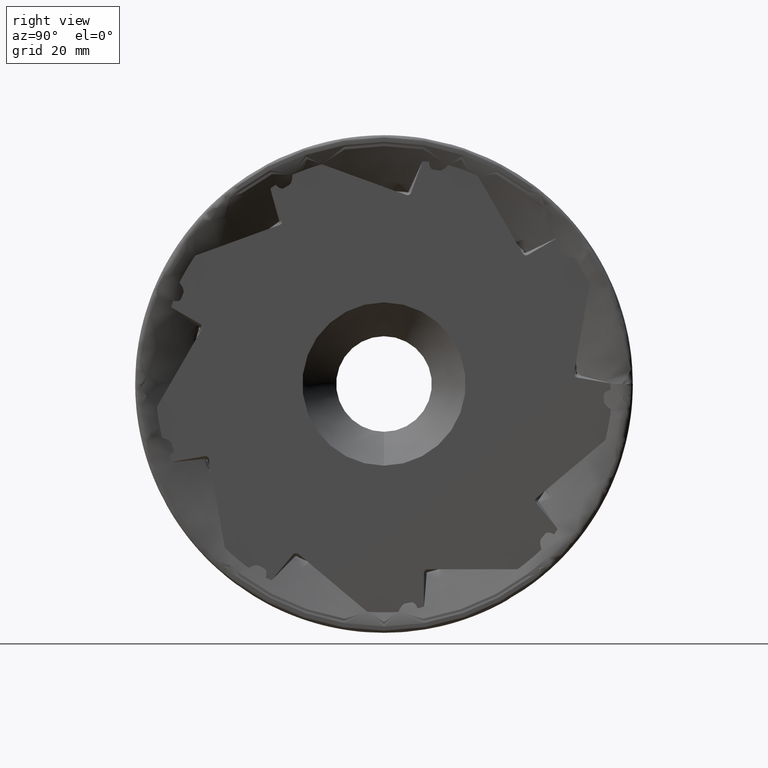
[diagram: clean part render]
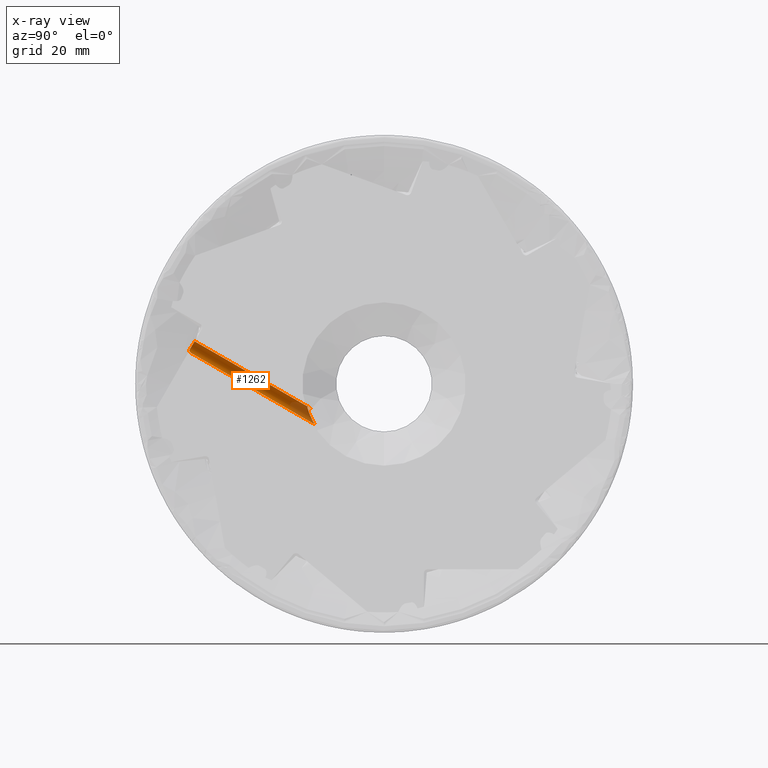
[diagram: x-ray — body ghosted, one internal face saturated and labeled with its STEP entity id]
A machine part, right view, then the same camera in x-ray: the body is ghosted and one INTERNAL B-rep face — a face not visible from any outside direction — is saturated and labeled: STEP entity #1262.
In plain terms, the highlighted cylindrical surface (edge-blend (fillet) strip) has radius 1.5 mm, axis along (-0.3907, 0.7972, -0.4603).
Its self-contained STEP definition (entity closure, byte-faithful):
#147 = CARTESIAN_POINT ( 'NONE',  ( -23.04949674558177700, -18.17345981357127400, -8.704179203961722100 ) ) ;
#307 = CARTESIAN_POINT ( 'NONE',  ( -22.13512762637165600, -19.07228938812385300, -6.504722583545889900 ) ) ;
#1146 = CARTESIAN_POINT ( 'NONE',  ( -7.304587876028966400, -48.70047764900023400, 7.991439512163555700 ) ) ;
#1262 = ADVANCED_FACE ( 'NONE', ( #15607 ), #20296, .F. ) ;
#1347 = CARTESIAN_POINT ( 'NONE',  ( -7.460917184708193900, -47.62067379049517500, 10.53366214104785200 ) ) ;
#1782 = VERTEX_POINT ( 'NONE', #4677 ) ;
#1867 = B_SPLINE_CURVE_WITH_KNOTS ( 'NONE', 3,
 ( #14665, #22360, #10834, #14755, #6717, #1146, #20880, #8809, #24968, #20710 ),
 .UNSPECIFIED., .F., .F.,
 ( 4, 2, 2, 2, 4 ),
 ( 0.003673813656455951800, 0.003960857431740297900, 0.004247901207024643200, 0.004534944982308988400, 0.004821988757593334600 ),
 .UNSPECIFIED. ) ;
#1977 = CARTESIAN_POINT ( 'NONE',  ( -22.83003004655499900, -18.61603675951868200, -7.715044027561571500 ) ) ;
#2137 = CARTESIAN_POINT ( 'NONE',  ( -23.05618106130897600, -18.12019735963106400, -8.814541228761900300 ) ) ;
#2494 = ORIENTED_EDGE ( 'NONE', *, *, #3190, .T. ) ;
#2983 = VERTEX_POINT ( 'NONE', #4596 ) ;
#3112 = CARTESIAN_POINT ( 'NONE',  ( -21.19999999999999900, -18.33770480737776900, -6.155878999639831800 ) ) ;
#3190 = EDGE_CURVE ( 'NONE', #23770, #1782, #16793, .T. ) ;
#3288 = CARTESIAN_POINT ( 'NONE',  ( 1.075119960716870200, -64.80372054943207200, 17.20718608206630800 ) ) ;
#3427 = CARTESIAN_POINT ( 'NONE',  ( -7.587140484888508700, -47.66123783518479200, 10.47225703541106500 ) ) ;
#3999 = CARTESIAN_POINT ( 'NONE',  ( -22.98971414969982900, -17.78594544164039000, -9.470825357509376400 ) ) ;
#4163 = CARTESIAN_POINT ( 'NONE',  ( -22.41679879256662000, -18.93748765123044800, -6.887321674840513300 ) ) ;
#4328 = CARTESIAN_POINT ( 'NONE',  ( -22.86033736683208100, -17.61876432293416500, -9.778140641424514000 ) ) ;
#4535 = CARTESIAN_POINT ( 'NONE',  ( -6.661044478524780200, -47.52018127597649800, 10.69263164512520200 ) ) ;
#4596 = CARTESIAN_POINT ( 'NONE',  ( -6.661044478524780200, -47.52018127597649800, 10.69263164512520200 ) ) ;
#4677 = CARTESIAN_POINT ( 'NONE',  ( -22.15920642049092100, -17.40039738971559700, -10.16113530467824000 ) ) ;
#4729 = ORIENTED_EDGE ( 'NONE', *, *, #13274, .F. ) ;
#4858 = CARTESIAN_POINT ( 'NONE',  ( -21.19999999999999900, -17.85739718309815100, -6.433184735811496900 ) ) ;
#5019 = DIRECTION ( 'NONE',  ( -0.3907311284892715000, 0.7971805873966901800, -0.4602524267262132500 ) ) ;
#5125 = CARTESIAN_POINT ( 'NONE',  ( -6.913100365509359700, -48.50592979871855400, 7.797652204945880100 ) ) ;
#5152 = CARTESIAN_POINT ( 'NONE',  ( -6.830772082628703500, -47.52323555830496100, 10.68734147295166500 ) ) ;
#5270 = LINE ( 'NONE', #10008, #16228 ) ;
#5435 = CARTESIAN_POINT ( 'NONE',  ( -7.752097528712401900, -48.85409976082363000, 8.460303475953495000 ) ) ;
#5823 =( BOUNDED_CURVE ( )  B_SPLINE_CURVE ( 3, ( #9074, #5152, #7142, #4535 ),
 .UNSPECIFIED., .F., .F. ) 
 B_SPLINE_CURVE_WITH_KNOTS ( ( 4, 4 ),
 ( 1.414481761212221800, 1.570796326794897700 ),
 .UNSPECIFIED. ) 
 CURVE ( )  GEOMETRIC_REPRESENTATION_ITEM ( )  RATIONAL_B_SPLINE_CURVE ( ( 1.000000000000000000, 0.9979648493521857700, 0.9979648493521857700, 1.000000000000000000 ) ) 
 REPRESENTATION_ITEM ( '' )  );
#6266 = CARTESIAN_POINT ( 'NONE',  ( 1.075119960716870000, -64.05372054943208600, 18.50622418774296900 ) ) ;
#6318 = CARTESIAN_POINT ( 'NONE',  ( -22.96401420908996700, -18.42932417086362300, -8.150996232620070000 ) ) ;
#6717 = CARTESIAN_POINT ( 'NONE',  ( -7.447582988323485900, -48.75856636618126300, 8.103940568002137500 ) ) ;
#6963 = B_SPLINE_CURVE_WITH_KNOTS ( 'NONE', 3,
 ( #5435, #7255, #21248, #25424, #15395, #13219, #21169, #13383, #9194, #15483, #15300, #3427, #1347, #17419, #21421, #25257 ),
 .UNSPECIFIED., .F., .F.,
 ( 4, 2, 2, 2, 2, 2, 2, 4 ),
 ( 0.001421106266146068400, 0.001848479125001176600, 0.002275851983856284800, 0.002703224842711393000, 0.003130597701566501200, 0.003985343419276732000, 0.004412716278131843600, 0.004840089136986955300 ),
 .UNSPECIFIED. ) ;
#7142 = CARTESIAN_POINT ( 'NONE',  ( -6.746038011559604400, -47.52018127597649800, 10.69263164512520200 ) ) ;
#7255 = CARTESIAN_POINT ( 'NONE',  ( -7.859268461241352800, -48.81226448298376400, 8.544079135479613300 ) ) ;
#7762 = EDGE_CURVE ( 'NONE', #1782, #19839, #21150, .T. ) ;
#7983 = CARTESIAN_POINT ( 'NONE',  ( -22.91224078547865500, -17.67395137540836500, -9.678214245673212100 ) ) ;
#8211 = CARTESIAN_POINT ( 'NONE',  ( -6.914729351933197600, -47.52932547518786800, 10.67679342749657000 ) ) ;
#8628 = ORIENTED_EDGE ( 'NONE', *, *, #23203, .F. ) ;
#8809 = CARTESIAN_POINT ( 'NONE',  ( -7.074345652652673300, -48.59153518681752400, 7.857450146185508200 ) ) ;
#9074 = CARTESIAN_POINT ( 'NONE',  ( -6.914729351933197600, -47.52932547518786800, 10.67679342749657000 ) ) ;
#9194 = CARTESIAN_POINT ( 'NONE',  ( -8.236244034944709500, -48.15690502075395300, 9.701247910136265400 ) ) ;
#9747 = ORIENTED_EDGE ( 'NONE', *, *, #16043, .T. ) ;
#9984 = CARTESIAN_POINT ( 'NONE',  ( -22.71843993646588400, -17.51893396138551800, -9.955894913426346800 ) ) ;
#10008 = CARTESIAN_POINT ( 'NONE',  ( 1.075119960716870000, -63.30372054943210700, 19.80526229341963100 ) ) ;
#10167 = CARTESIAN_POINT ( 'NONE',  ( -21.19999999999999900, -19.31181656956638500, -5.751194726613001700 ) ) ;
#10269 = CARTESIAN_POINT ( 'NONE',  ( -21.19999999999999900, -19.31181656956638500, -5.751194726613001700 ) ) ;
#10567 = CARTESIAN_POINT ( 'NONE',  ( -7.752097528712401900, -48.85409976082363000, 8.460303475953495000 ) ) ;
#10834 = CARTESIAN_POINT ( 'NONE',  ( -7.642240740443803300, -48.82596008144368200, 8.306824317076895200 ) ) ;
#10953 = CARTESIAN_POINT ( 'NONE',  ( -21.19999999999999900, -18.83007073689022800, -5.925004296014898300 ) ) ;
#11615 = ORIENTED_EDGE ( 'NONE', *, *, #13501, .T. ) ;
#12011 = CARTESIAN_POINT ( 'NONE',  ( -21.61954988470937500, -19.23559240991283700, -6.003599937230455400 ) ) ;
#12037 = EDGE_CURVE ( 'NONE', #2983, #24992, #5270, .T. ) ;
#12265 = CARTESIAN_POINT ( 'NONE',  ( -22.74484721533391600, -18.70243792174887100, -7.502694262160841500 ) ) ;
#13219 = CARTESIAN_POINT ( 'NONE',  ( -8.248460476116966000, -48.44979057977672500, 9.210558205346774900 ) ) ;
#13274 = EDGE_CURVE ( 'NONE', #20599, #20357, #6963, .T. ) ;
#13383 = CARTESIAN_POINT ( 'NONE',  ( -8.260958262293948800, -48.23093305071664400, 9.580460006779040000 ) ) ;
#13501 = EDGE_CURVE ( 'NONE', #20599, #23770, #1867, .T. ) ;
#13512 = AXIS2_PLACEMENT_3D ( 'NONE', #6266, #18515, #22346 ) ;
#14279 = CARTESIAN_POINT ( 'NONE',  ( -21.97745487303234000, -19.13187899616039500, -6.326328606932007000 ) ) ;
#14665 = CARTESIAN_POINT ( 'NONE',  ( -7.752097528712401900, -48.85409976082363000, 8.460303475953495000 ) ) ;
#14755 = CARTESIAN_POINT ( 'NONE',  ( -7.516140834681200600, -48.78416877912584200, 8.168107762125902800 ) ) ;
#15300 = CARTESIAN_POINT ( 'NONE',  ( -7.924115985668913200, -47.80704677707088700, 10.25086540874823800 ) ) ;
#15395 = CARTESIAN_POINT ( 'NONE',  ( -8.169172739988244600, -48.58612916703647500, 8.969204869893369300 ) ) ;
#15483 = CARTESIAN_POINT ( 'NONE',  ( -8.099749911377895000, -47.94029493110048200, 10.04760831451846000 ) ) ;
#15607 = FACE_OUTER_BOUND ( 'NONE', #16221, .T. ) ;
#15790 = CARTESIAN_POINT ( 'NONE',  ( -22.62580499517385800, -17.47412372386755300, -10.03399345466758400 ) ) ;
#16043 = EDGE_CURVE ( 'NONE', #19839, #24992, #22507, .T. ) ;
#16072 = DIRECTION ( 'NONE',  ( -0.3907311284892715000, 0.7971805873966901800, -0.4602524267262132500 ) ) ;
#16221 = EDGE_LOOP ( 'NONE', ( #11615, #2494, #19288, #9747, #24413, #8628, #4729 ) ) ;
#16228 = VECTOR ( 'NONE', #16072, 1000.000000000000100 ) ;
#16793 = LINE ( 'NONE', #3288, #23026 ) ;
#17419 = CARTESIAN_POINT ( 'NONE',  ( -7.197527818607051500, -47.56031214144264400, 10.62632382729002100 ) ) ;
#18214 = CARTESIAN_POINT ( 'NONE',  ( -23.04814924141389900, -17.95474086050468500, -9.146844081162550200 ) ) ;
#18515 = DIRECTION ( 'NONE',  ( -0.3907311284892715500, 0.7971805873966902900, -0.4602524267262133000 ) ) ;
#19021 = CARTESIAN_POINT ( 'NONE',  ( -21.19999999999999900, -19.31181656956638500, -5.751194726613001700 ) ) ;
#19288 = ORIENTED_EDGE ( 'NONE', *, *, #7762, .T. ) ;
#19714 = CARTESIAN_POINT ( 'NONE',  ( -22.28312687388260800, -17.40039738971585900, -10.16113530467809900 ) ) ;
#19839 = VERTEX_POINT ( 'NONE', #10269 ) ;
#19894 = CARTESIAN_POINT ( 'NONE',  ( -22.40808439193258300, -17.41469444983214000, -10.13678656105219200 ) ) ;
#19976 = CARTESIAN_POINT ( 'NONE',  ( -22.53875861615165000, -18.86291477556526200, -7.089573441194701800 ) ) ;
#20229 = CARTESIAN_POINT ( 'NONE',  ( -21.41950599830570200, -19.27945703029562800, -5.859854147199260200 ) ) ;
#20296 = CYLINDRICAL_SURFACE ( 'NONE', #13512, 1.499999999999995800 ) ;
#20357 = VERTEX_POINT ( 'NONE', #8211 ) ;
#20599 = VERTEX_POINT ( 'NONE', #10567 ) ;
#20710 = CARTESIAN_POINT ( 'NONE',  ( -6.913100365509359700, -48.50592979871855400, 7.797652204945880100 ) ) ;
#20880 = CARTESIAN_POINT ( 'NONE',  ( -7.229256709623364900, -48.66806739730417800, 7.942494063664274700 ) ) ;
#21150 = B_SPLINE_CURVE_WITH_KNOTS ( 'NONE', 3,
 ( #21640, #19714, #19894, #15790, #9984, #4328, #7983, #3999, #24231, #18214, #21979, #2137, #147, #23982, #6318, #1977, #12265, #19976, #4163, #307, #14279, #12011, #20229, #10167 ),
 .UNSPECIFIED., .F., .F.,
 ( 4, 2, 2, 2, 2, 2, 2, 2, 2, 2, 2, 4 ),
 ( 0.006868027024647312500, 0.007240887953649949500, 0.007613748882652586500, 0.007986609811655222600, 0.008359470740657858800, 0.008732331669660496600, 0.009105192598663132800, 0.009850914456668406800, 0.01059663631467367900, 0.01134235817267895300, 0.01208808003068422700, 0.01283380188868949900 ),
 .UNSPECIFIED. ) ;
#21169 = CARTESIAN_POINT ( 'NONE',  ( -8.266967283186151100, -48.37875452986669700, 9.332788279411236200 ) ) ;
#21248 = CARTESIAN_POINT ( 'NONE',  ( -7.954937806985034500, -48.76194667415489900, 8.642026778623293400 ) ) ;
#21421 = CARTESIAN_POINT ( 'NONE',  ( -7.057777244497660100, -47.53970158416822000, 10.65882147955775000 ) ) ;
#21640 = CARTESIAN_POINT ( 'NONE',  ( -22.15920642049092100, -17.40039738971559700, -10.16113530467824000 ) ) ;
#21979 = CARTESIAN_POINT ( 'NONE',  ( -23.05555559448501100, -18.01101922334543600, -9.035534071752762100 ) ) ;
#22346 = DIRECTION ( 'NONE',  ( 0.0000000000000000000, 0.4999999999999926200, 0.8660254037844429300 ) ) ;
#22360 = CARTESIAN_POINT ( 'NONE',  ( -7.699837835154726300, -48.84224691349773200, 8.381143610204009800 ) ) ;
#22507 =( BOUNDED_CURVE ( )  B_SPLINE_CURVE ( 3, ( #19021, #10953, #3112, #24851 ),
 .UNSPECIFIED., .F., .F. ) 
 B_SPLINE_CURVE_WITH_KNOTS ( ( 4, 4 ),
 ( 4.282328782384507100, 4.712388980384689700 ),
 .UNSPECIFIED. ) 
 CURVE ( )  GEOMETRIC_REPRESENTATION_ITEM ( )  RATIONAL_B_SPLINE_CURVE ( ( 1.000000000000000000, 0.9846466481467024400, 0.9846466481467024400, 1.000000000000000000 ) ) 
 REPRESENTATION_ITEM ( '' )  );
#23026 = VECTOR ( 'NONE', #5019, 1000.000000000000100 ) ;
#23203 = EDGE_CURVE ( 'NONE', #20357, #2983, #5823, .T. ) ;
#23770 = VERTEX_POINT ( 'NONE', #5125 ) ;
#23982 = CARTESIAN_POINT ( 'NONE',  ( -23.01217961903446600, -18.32952105373262300, -8.373211258618203700 ) ) ;
#24231 = CARTESIAN_POINT ( 'NONE',  ( -23.01509802785278300, -17.84231787089494100, -9.364249516481157400 ) ) ;
#24413 = ORIENTED_EDGE ( 'NONE', *, *, #12037, .F. ) ;
#24851 = CARTESIAN_POINT ( 'NONE',  ( -21.19999999999999900, -17.85739718309815100, -6.433184735811496900 ) ) ;
#24968 = CARTESIAN_POINT ( 'NONE',  ( -6.996243319144966200, -48.54666563892377700, 7.821171053254612800 ) ) ;
#24992 = VERTEX_POINT ( 'NONE', #4858 ) ;
#25257 = CARTESIAN_POINT ( 'NONE',  ( -6.914729351933197600, -47.52932547518786800, 10.67679342749657000 ) ) ;
#25424 = CARTESIAN_POINT ( 'NONE',  ( -8.109473498345037600, -48.64892802941317000, 8.854470451967920000 ) ) ;